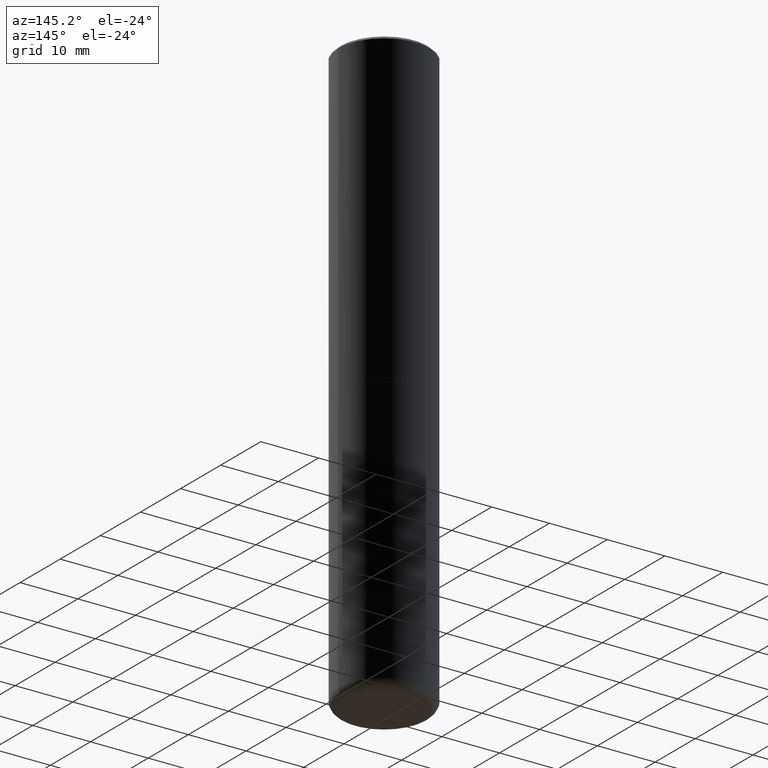
[diagram: clean part render]
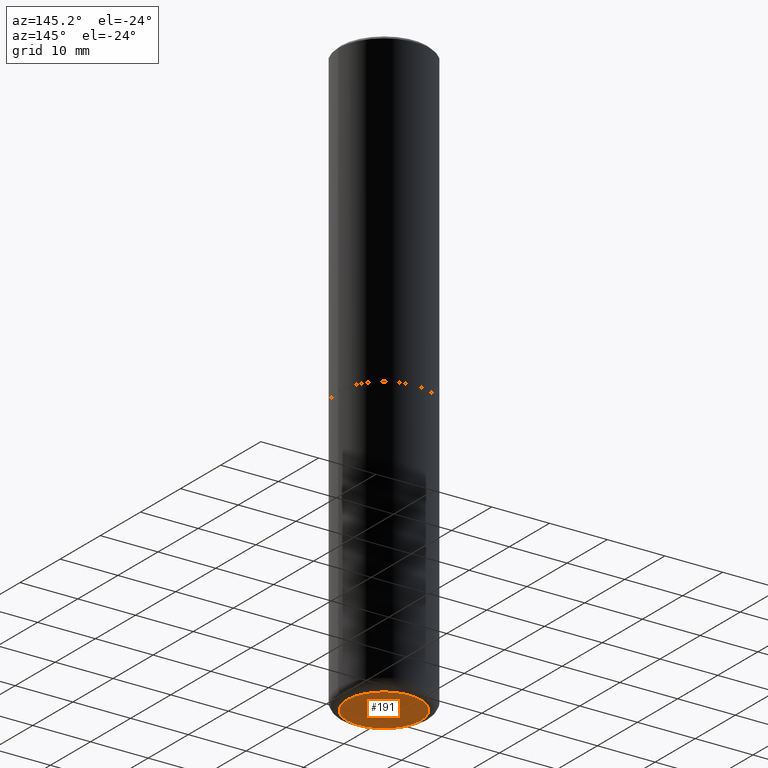
[diagram: same view with one face highlighted and labeled with its STEP entity id]
A machine part, auxiliary view. The second image highlights one B-rep face of the part: STEP entity #191.
In plain terms, the highlighted planar face has unit normal (0, -0, -1).
Its self-contained STEP definition (entity closure, byte-faithful):
#6 = EDGE_LOOP ( 'NONE', ( #138, #102 ) ) ;
#27 = AXIS2_PLACEMENT_3D ( 'NONE', #375, #202, #338 ) ;
#28 = DIRECTION ( 'NONE',  ( 2.438088387897960049E-29, -3.491481338843145188E-15, -1.000000000000000000 ) ) ;
#32 = CIRCLE ( 'NONE', #267, 0.2525000000000000022 ) ;
#56 = CARTESIAN_POINT ( 'NONE',  ( 0.2525000000000000022, -1.572912343148836720E-14, -4.000000000000000888 ) ) ;
#101 = CARTESIAN_POINT ( 'NONE',  ( 9.781875224740547508E-29, -1.396592535537258391E-14, -4.000000000000000888 ) ) ;
#102 = ORIENTED_EDGE ( 'NONE', *, *, #396, .F. ) ;
#119 = CARTESIAN_POINT ( 'NONE',  ( 3.737869654564021101E-29, -2.262128533529896139E-14, -4.000000000000000000 ) ) ;
#133 = DIRECTION ( 'NONE',  ( -1.000000000000000000, 6.982962677686265922E-15, -4.876176775795935793E-29 ) ) ;
#138 = ORIENTED_EDGE ( 'NONE', *, *, #161, .F. ) ;
#144 = PLANE ( 'NONE',  #241 ) ;
#159 = CIRCLE ( 'NONE', #27, 0.2525000000000000022 ) ;
#161 = EDGE_CURVE ( 'NONE', #284, #261, #159, .T. ) ;
#191 = ADVANCED_FACE ( 'NONE', ( #206 ), #144, .T. ) ;
#202 = DIRECTION ( 'NONE',  ( -2.445468806185136597E-29, 3.491481338843145583E-15, 1.000000000000000000 ) ) ;
#206 = FACE_OUTER_BOUND ( 'NONE', #6, .T. ) ;
#241 = AXIS2_PLACEMENT_3D ( 'NONE', #119, #28, #133 ) ;
#261 = VERTEX_POINT ( 'NONE', #305 ) ;
#267 = AXIS2_PLACEMENT_3D ( 'NONE', #101, #343, #271 ) ;
#271 = DIRECTION ( 'NONE',  ( 1.000000000000000000, -6.982962677686269866E-15, 0.000000000000000000 ) ) ;
#284 = VERTEX_POINT ( 'NONE', #56 ) ;
#305 = CARTESIAN_POINT ( 'NONE',  ( -0.2525000000000000022, -1.185389768668500455E-14, -4.000000000000000888 ) ) ;
#338 = DIRECTION ( 'NONE',  ( 1.000000000000000000, -6.982962677686269866E-15, 0.000000000000000000 ) ) ;
#343 = DIRECTION ( 'NONE',  ( -2.445468806185136597E-29, 3.491481338843145583E-15, 1.000000000000000000 ) ) ;
#375 = CARTESIAN_POINT ( 'NONE',  ( 9.781875224740547508E-29, -1.396592535537258391E-14, -4.000000000000000888 ) ) ;
#396 = EDGE_CURVE ( 'NONE', #261, #284, #32, .T. ) ;